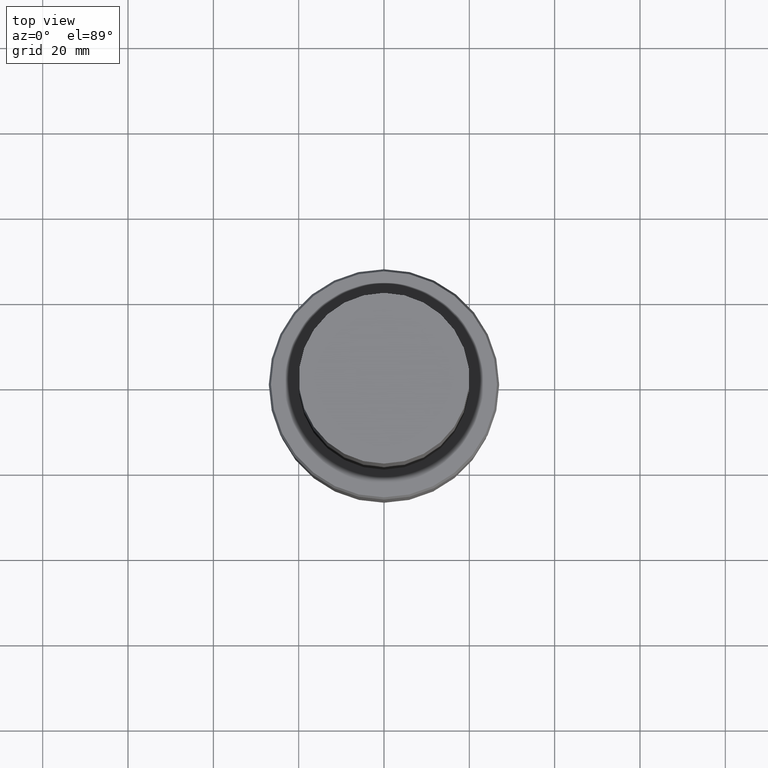
[diagram: clean part render]
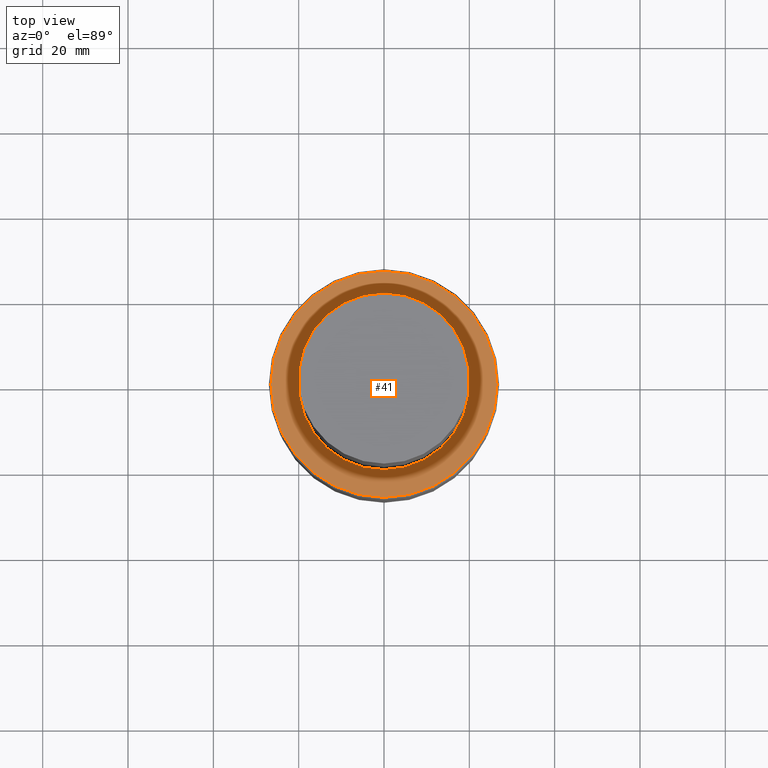
[diagram: same view with one face highlighted and labeled with its STEP entity id]
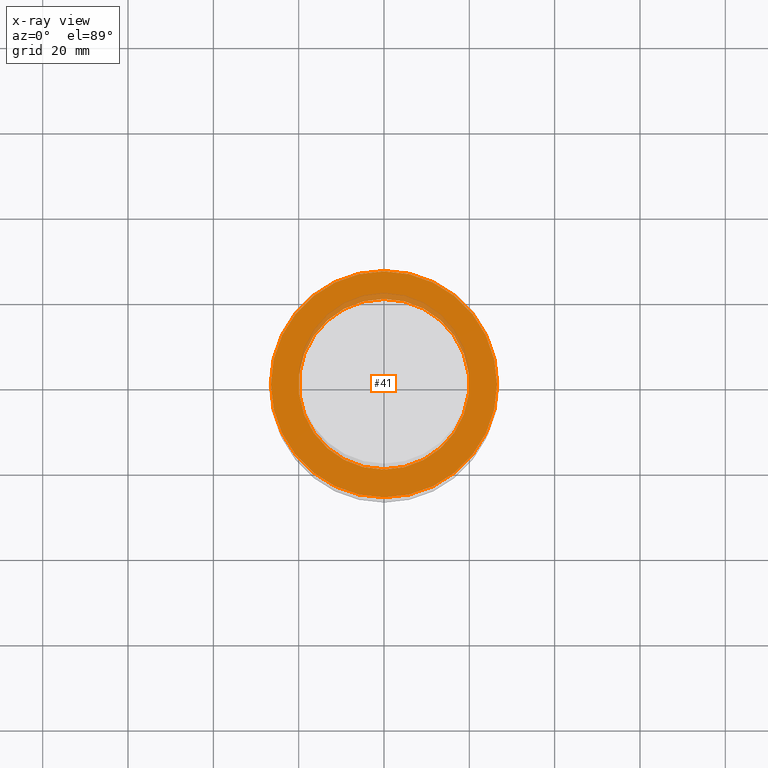
[diagram: x-ray of the same camera — body ghosted, the highlighted face saturated]
A machine part, top view. The second image highlights one B-rep face of the part: STEP entity #41.
The next image is the same camera in x-ray: the body ghosted, the highlighted face saturated — about 6% of this face is hidden behind the body in this view.
In plain terms, the highlighted planar face has unit normal (-0, -0, 1).
Its self-contained STEP definition (entity closure, byte-faithful):
#41=ADVANCED_FACE('Unnamed[1]',(#98,#99),#100,.T.);
#63=EDGE_CURVE('Unnamed[1]',#132,#132,#133,.T.);
#68=EDGE_CURVE('Unnamed[1]',#140,#140,#141,.T.);
#98=FACE_OUTER_BOUND('',#167,.T.);
#99=FACE_BOUND('',#168,.T.);
#100=PLANE('',#169);
#132=VERTEX_POINT('',#210);
#133=CIRCLE('',#211,20.0000000000027);
#140=VERTEX_POINT('',#220);
#141=CIRCLE('',#221,26.4999999999965);
#167=EDGE_LOOP('',(#243));
#168=EDGE_LOOP('',(#244));
#169=AXIS2_PLACEMENT_3D('',#245,#246,#247);
#210=CARTESIAN_POINT('',(-4.43934464690863E-015,20.0000000000027,72.4999999999914));
#211=AXIS2_PLACEMENT_3D('',#282,#283,#284);
#220=CARTESIAN_POINT('',(-4.43934464690863E-015,26.4999999999965,72.4999999999914));
#221=AXIS2_PLACEMENT_3D('',#291,#292,#293);
#243=ORIENTED_EDGE('',*,*,#68,.F.);
#244=ORIENTED_EDGE('',*,*,#63,.T.);
#245=CARTESIAN_POINT('',(-4.43934464690863E-015,23.2499999999996,72.4999999999914));
#246=DIRECTION('',(-6.12323399573677E-017,-2.03546435311683E-015,1.0));
#247=DIRECTION('',(1.29463397971922E-031,-1.0,-2.03546435311683E-015));
#282=CARTESIAN_POINT('',(-4.43934464690863E-015,-8.87868929381725E-015,72.4999999999914));
#283=DIRECTION('',(6.12323399573677E-017,1.22464679914703E-016,-1.0));
#284=DIRECTION('',(-1.23259516440766E-032,1.0,1.22464679914703E-016));
#291=CARTESIAN_POINT('',(-4.43934464690863E-015,-8.87868929381726E-015,72.4999999999914));
#292=DIRECTION('',(6.12323399573676E-017,1.22464679914719E-016,-1.0));
#293=DIRECTION('',(-1.23259516440799E-032,1.0,1.22464679914719E-016));